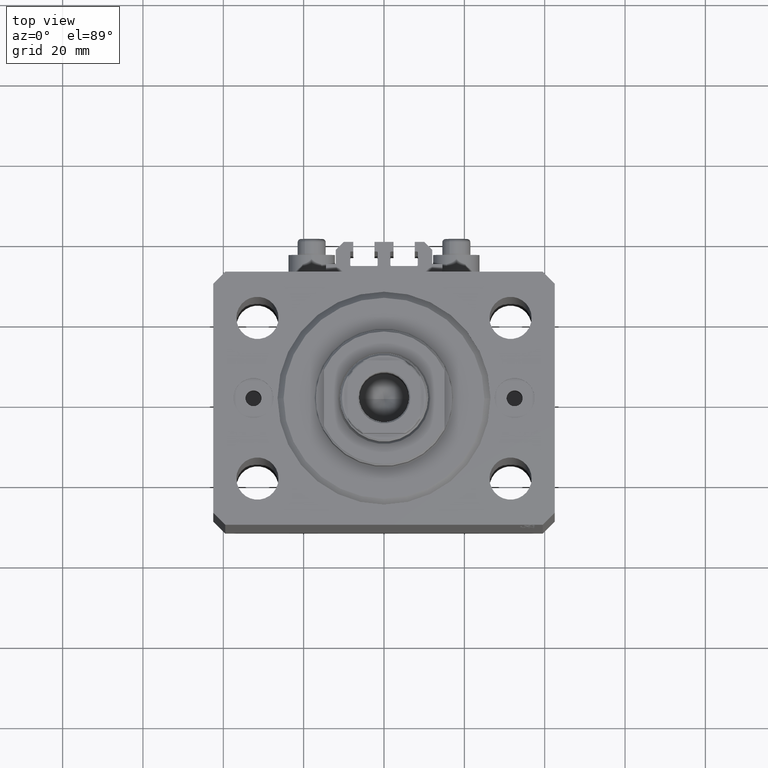
[diagram: clean part render]
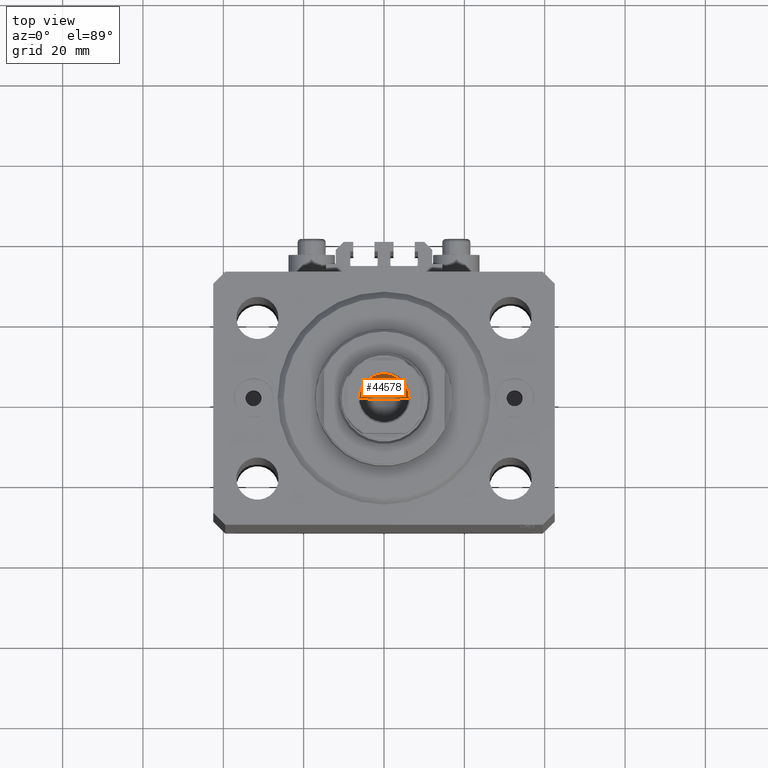
[diagram: same view with one face highlighted and labeled with its STEP entity id]
A machine part, top view. The second image highlights one B-rep face of the part: STEP entity #44578.
In plain terms, the highlighted conical surface has half-angle 59 deg.
Its self-contained STEP definition (entity closure, byte-faithful):
#2512 = DIRECTION ( 'NONE',  ( 1.000000000000000000, 0.000000000000000000, 0.000000000000000000 ) ) ;
#3299 = LINE ( 'NONE', #10228, #46128 ) ;
#3490 = CARTESIAN_POINT ( 'NONE',  ( 6.249999999999993783, 0.000000000000000000, 107.5999999999999943 ) ) ;
#4605 = AXIS2_PLACEMENT_3D ( 'NONE', #28941, #10559, #46613 ) ;
#5084 = VERTEX_POINT ( 'NONE', #22243 ) ;
#9467 = ORIENTED_EDGE ( 'NONE', *, *, #18819, .F. ) ;
#10228 = CARTESIAN_POINT ( 'NONE',  ( -6.249999999999993783, 7.654042494670949718E-16, 107.5999999999999943 ) ) ;
#10559 = DIRECTION ( 'NONE',  ( -0.000000000000000000, -0.000000000000000000, 1.000000000000000000 ) ) ;
#11894 = VERTEX_POINT ( 'NONE', #47146 ) ;
#16874 = LINE ( 'NONE', #19978, #19809 ) ;
#17309 = ORIENTED_EDGE ( 'NONE', *, *, #34163, .T. ) ;
#18819 = EDGE_CURVE ( 'NONE', #5084, #11894, #3299, .T. ) ;
#19809 = VECTOR ( 'NONE', #31437, 1000.000000000000000 ) ;
#19978 = CARTESIAN_POINT ( 'NONE',  ( 6.249999999999993783, 0.000000000000000000, 107.5999999999999943 ) ) ;
#20192 = CARTESIAN_POINT ( 'NONE',  ( 0.000000000000000000, 0.000000000000000000, 107.5999999999999943 ) ) ;
#22243 = CARTESIAN_POINT ( 'NONE',  ( -7.434177670704979810E-15, 0.000000000000000000, 103.8446211310777443 ) ) ;
#28380 = DIRECTION ( 'NONE',  ( -0.8571673007021115565, 1.049727191138617710E-16, 0.5150380749100554878 ) ) ;
#28941 = CARTESIAN_POINT ( 'NONE',  ( 0.000000000000000000, 0.000000000000000000, 107.5999999999999943 ) ) ;
#31437 = DIRECTION ( 'NONE',  ( 0.8571673007021115565, 0.000000000000000000, 0.5150380749100554878 ) ) ;
#33568 = CIRCLE ( 'NONE', #4605, 6.249999999999993783 ) ;
#34163 = EDGE_CURVE ( 'NONE', #5084, #35799, #16874, .T. ) ;
#34738 = FACE_OUTER_BOUND ( 'NONE', #43539, .T. ) ;
#34978 = DIRECTION ( 'NONE',  ( -0.000000000000000000, -0.000000000000000000, 1.000000000000000000 ) ) ;
#35799 = VERTEX_POINT ( 'NONE', #3490 ) ;
#36227 = EDGE_CURVE ( 'NONE', #35799, #11894, #33568, .T. ) ;
#36887 = CONICAL_SURFACE ( 'NONE', #39915, 6.249999999999993783, 1.029744258676652979 ) ;
#39915 = AXIS2_PLACEMENT_3D ( 'NONE', #20192, #34978, #2512 ) ;
#42630 = ORIENTED_EDGE ( 'NONE', *, *, #36227, .T. ) ;
#43539 = EDGE_LOOP ( 'NONE', ( #9467, #17309, #42630 ) ) ;
#44578 = ADVANCED_FACE ( 'NONE', ( #34738 ), #36887, .F. ) ;
#46128 = VECTOR ( 'NONE', #28380, 1000.000000000000000 ) ;
#46613 = DIRECTION ( 'NONE',  ( 1.000000000000000000, 0.000000000000000000, 0.000000000000000000 ) ) ;
#47146 = CARTESIAN_POINT ( 'NONE',  ( -6.249999999999993783, 7.654042494670949718E-16, 107.5999999999999943 ) ) ;